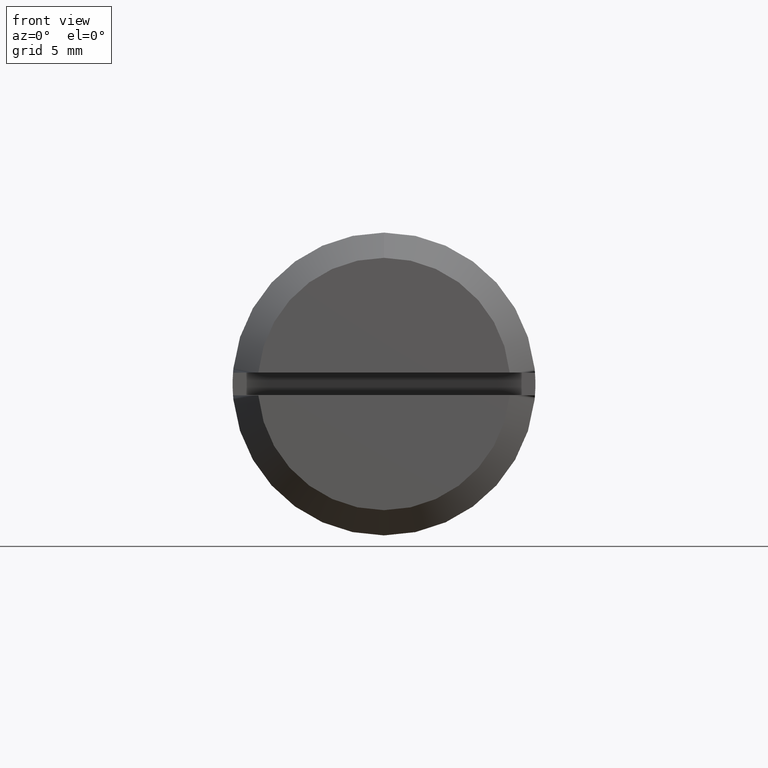
[diagram: clean part render]
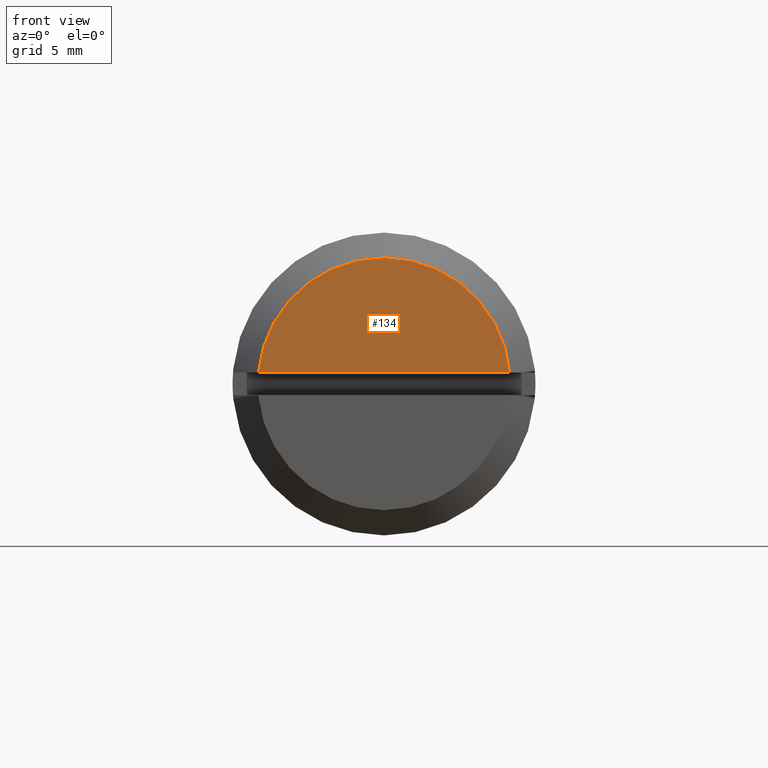
[diagram: same view with one face highlighted and labeled with its STEP entity id]
A machine part, front view. The second image highlights one B-rep face of the part: STEP entity #134.
In plain terms, the highlighted planar face has unit normal (0, 1, 0).
Its self-contained STEP definition (entity closure, byte-faithful):
#134=ADVANCED_FACE('',(#379),#378,.F.);
#378=PLANE('',#696);
#379=FACE_OUTER_BOUND('',#697,.T.);
#693=CARTESIAN_POINT('',(-1.19999000000E+01,-1.19513011844E+01,-1.00000000000E-02));
#694=DIRECTION('',(1.00000000000E+00,0.00000000000E+00,0.00000000000E+00));
#695=DIRECTION('',(0.00000000000E+00,1.00000000000E+00,0.00000000000E+00));
#696=AXIS2_PLACEMENT_3D('',#693,#694,#695);
#697=EDGE_LOOP('',(#946,#947,#948));
#946=ORIENTED_EDGE('',*,*,#1092,.T.);
#947=ORIENTED_EDGE('',*,*,#1093,.T.);
#948=ORIENTED_EDGE('',*,*,#1094,.T.);
#1092=EDGE_CURVE('',#1546,#1547,#1548,.T.);
#1093=EDGE_CURVE('',#1547,#1554,#1555,.T.);
#1094=EDGE_CURVE('',#1554,#1546,#1561,.T.);
#1546=VERTEX_POINT('',#2051);
#1547=VERTEX_POINT('',#2052);
#1548=LINE('',#2053,#2054);
#1554=VERTEX_POINT('',#2056);
#1555=CIRCLE('',#2060,1.00000000000E+01);
#1561=CIRCLE('',#2064,1.00000000000E+01);
#2051=CARTESIAN_POINT('',(-1.19999000000E+01,9.95941765366E+00,9.00000000000E-01));
#2052=CARTESIAN_POINT('',(-1.19999000000E+01,-9.95941765366E+00,9.00000000000E-01));
#2053=CARTESIAN_POINT('',(-1.19999000000E+01,9.95941765366E+00,9.00000000000E-01));
#2054=VECTOR('',#2055,1.99188353073E+01);
#2055=DIRECTION('',(0.00000000000E+00,-1.00000000000E+00,0.00000000000E+00));
#2056=CARTESIAN_POINT('',(-1.19999000000E+01,1.60540127503E-06,1.00000000000E+01));
#2057=CARTESIAN_POINT('',(-1.19999000000E+01,0.00000000000E+00,0.00000000000E+00));
#2058=DIRECTION('',(-1.00000000000E+00,0.00000000000E+00,0.00000000000E+00));
#2059=DIRECTION('',(-0.00000000000E+00,-0.00000000000E+00,-1.00000000000E+00));
#2060=AXIS2_PLACEMENT_3D('',#2057,#2058,#2059);
#2061=CARTESIAN_POINT('',(-1.19999000000E+01,0.00000000000E+00,0.00000000000E+00));
#2062=DIRECTION('',(-1.00000000000E+00,0.00000000000E+00,0.00000000000E+00));
#2063=DIRECTION('',(-0.00000000000E+00,-0.00000000000E+00,-1.00000000000E+00));
#2064=AXIS2_PLACEMENT_3D('',#2061,#2062,#2063);